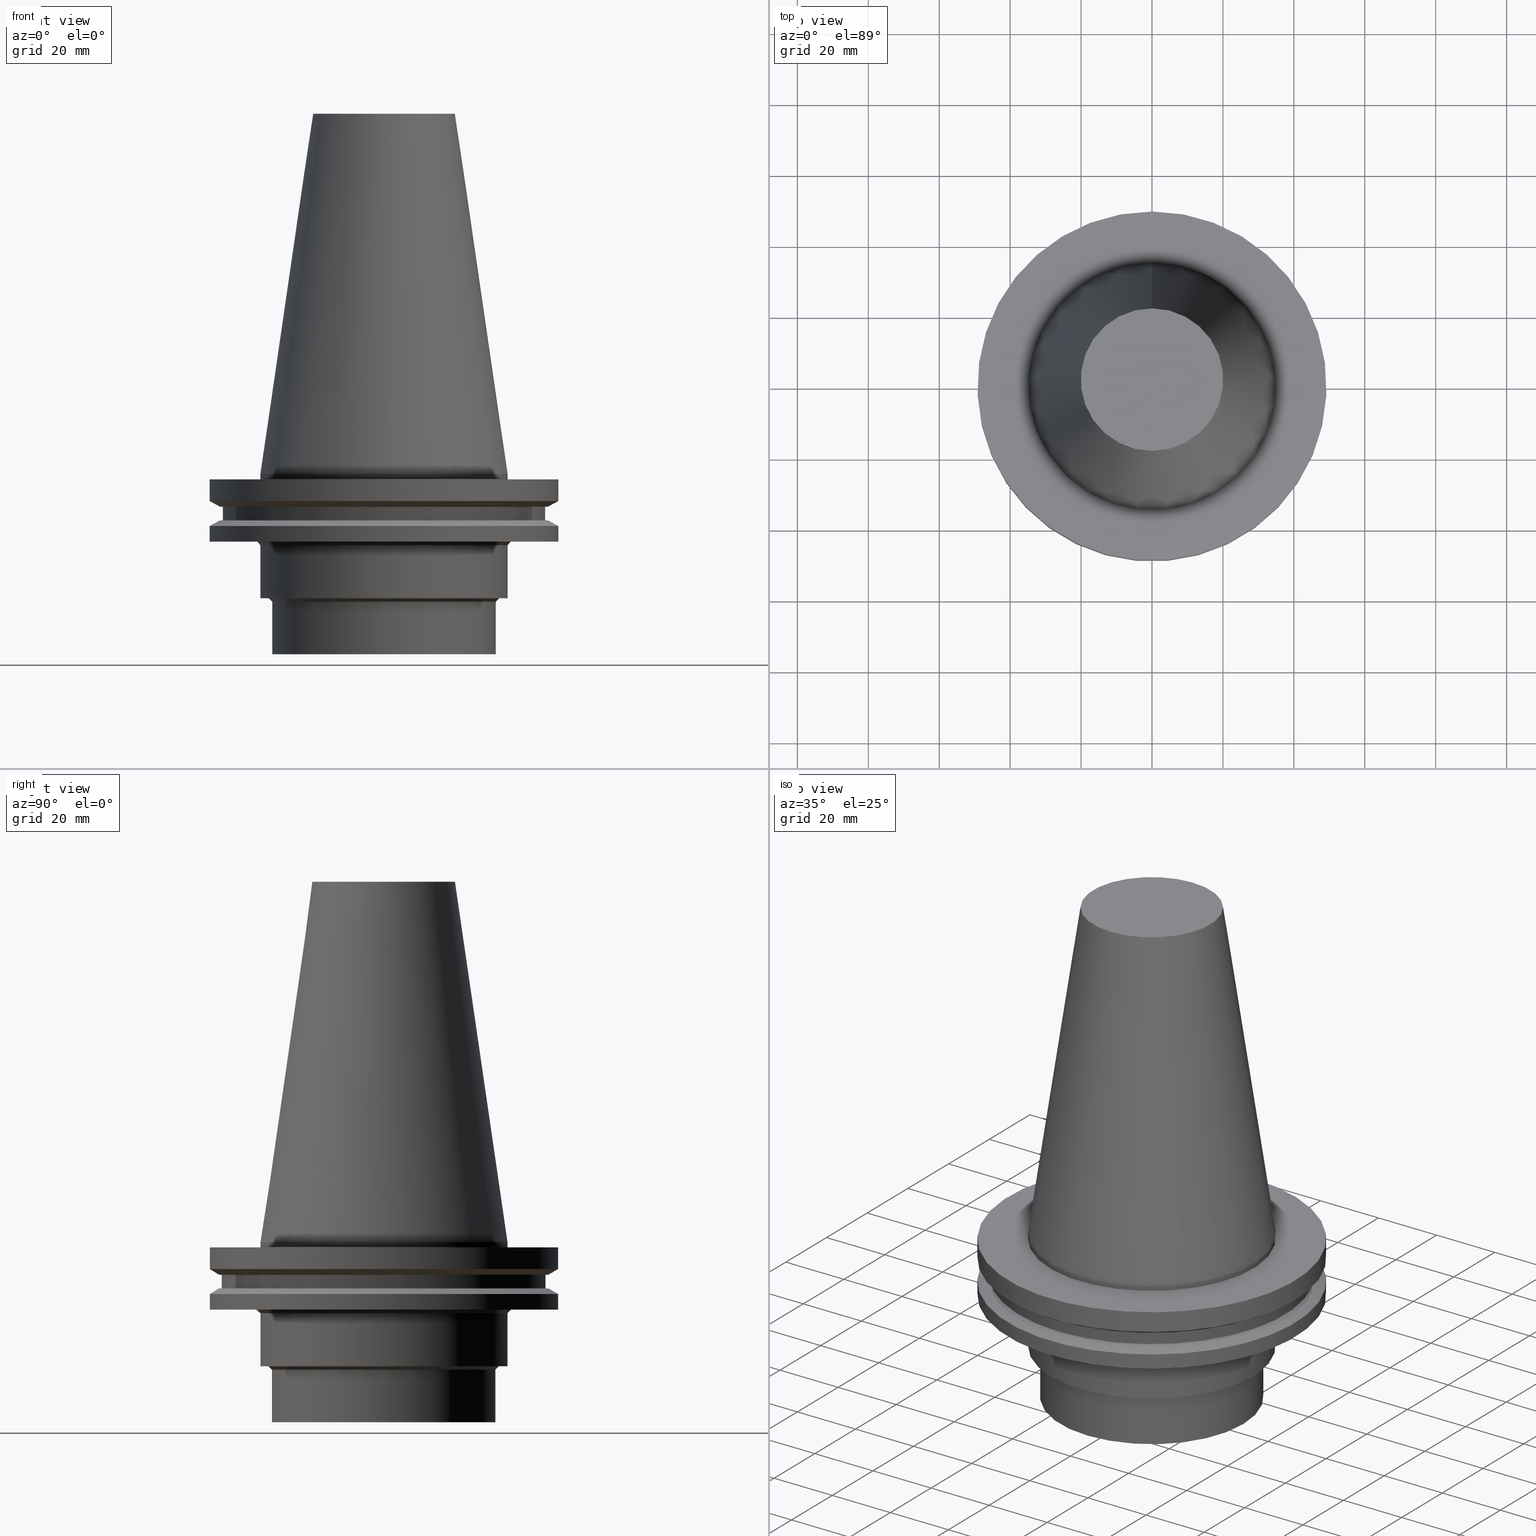
[diagram: canonical four-view strip — front | top / right | iso, engineering-drawing reading convention]
A machine part, canonical four-view strip (front | top / right | iso — engineering-drawing reading convention). The complete STEP part file that produces these views, byte-faithful:
ISO-10303-21;
HEADER;
FILE_DESCRIPTION((''),'1');
FILE_NAME('V:/90_\X2\53D65F9730C730FC30BF\X0\/00_\X2\6DE18DEF30C730FC30BF\X0\/ALL/BCV-BKUS\X2\FF76FF80FF9BFF78FF9E752852A05DE556F3\X0\201801/BCV50Y-CAPTO/BCV50Y-C6-2.stp','2018-02-01T02:02:19',(''),(''),'Spatial Interop R21 SP3','Kubotek KeyCreator 2011 V10.0.2 (22737)',' ');
FILE_SCHEMA(('automotive_design'));
ENDSEC;
DATA;
#1=MECHANICAL_DESIGN_GEOMETRIC_PRESENTATION_REPRESENTATION(' ',(#10,#11,#12,#13,#14,#15,#16,#17,#18,#19,#20,#21,#22,#23,#24,#25,#26,#27,#28,#29,#30,#31,#32,#33,#34,#35,#36,#37,#38,#39,#40,#41,#42,#43,#44,#45),#6);
#2=PRODUCT_DEFINITION_CONTEXT('',#46,'design');
#3=APPLICATION_PROTOCOL_DEFINITION('INTERNATIONAL STANDARD','automotive_design',1994,#46);
#4=PRODUCT_CATEGORY_RELATIONSHIP('NONE','NONE',#47,#48);
#5=SHAPE_DEFINITION_REPRESENTATION(#49,#50);
#6= (GEOMETRIC_REPRESENTATION_CONTEXT(3)GLOBAL_UNCERTAINTY_ASSIGNED_CONTEXT((#53))GLOBAL_UNIT_ASSIGNED_CONTEXT((#55,#56,#57))REPRESENTATION_CONTEXT('NONE','WORKSPACE'));
#10=STYLED_ITEM('',(#59),#60);
#11=STYLED_ITEM('',(#61,#62),#63);
#12=STYLED_ITEM('',(#64),#65);
#13=STYLED_ITEM('',(#66,#67),#68);
#14=STYLED_ITEM('',(#69),#70);
#15=STYLED_ITEM('',(#71),#72);
#16=STYLED_ITEM('',(#73,#74),#75);
#17=STYLED_ITEM('',(#76),#77);
#18=STYLED_ITEM('',(#78),#79);
#19=STYLED_ITEM('',(#80,#81),#82);
#20=STYLED_ITEM('',(#83),#84);
#21=STYLED_ITEM('',(#85,#86),#87);
#22=STYLED_ITEM('',(#88),#89);
#23=STYLED_ITEM('',(#90),#91);
#24=STYLED_ITEM('',(#92),#93);
#25=STYLED_ITEM('',(#94,#95),#96);
#26=STYLED_ITEM('',(#97),#98);
#27=STYLED_ITEM('',(#99,#100),#101);
#28=STYLED_ITEM('',(#102,#103),#104);
#29=STYLED_ITEM('',(#105,#106),#107);
#30=STYLED_ITEM('',(#108),#109);
#31=STYLED_ITEM('',(#110,#111),#112);
#32=STYLED_ITEM('',(#113,#114),#115);
#33=STYLED_ITEM('',(#116),#117);
#34=STYLED_ITEM('',(#118,#119),#120);
#35=STYLED_ITEM('',(#121,#122),#123);
#36=STYLED_ITEM('',(#124),#125);
#37=STYLED_ITEM('',(#126),#127);
#38=STYLED_ITEM('',(#128),#129);
#39=STYLED_ITEM('',(#130,#131),#132);
#40=STYLED_ITEM('',(#133,#134),#135);
#41=STYLED_ITEM('',(#136,#137),#138);
#42=STYLED_ITEM('',(#139,#140),#141);
#43=STYLED_ITEM('',(#142,#143),#144);
#44=STYLED_ITEM('',(#145,#146),#147);
#45=STYLED_ITEM('',(#148),#149);
#46=APPLICATION_CONTEXT(' ');
#47=PRODUCT_CATEGORY('part','NONE');
#48=PRODUCT_RELATED_PRODUCT_CATEGORY('detail',' ',(#150));
#49=PRODUCT_DEFINITION_SHAPE('NONE','NONE',#151);
#50=ADVANCED_BREP_SHAPE_REPRESENTATION('Unnamed[1]',(#141,#152),#6);
#53=UNCERTAINTY_MEASURE_WITH_UNIT(LENGTH_MEASURE(1.0E-006),#55,'','');
#55= (CONVERSION_BASED_UNIT('MILLIMETRE',#155)LENGTH_UNIT()NAMED_UNIT(#158));
#56= (NAMED_UNIT(#160)PLANE_ANGLE_UNIT()SI_UNIT($,.RADIAN.));
#57= (NAMED_UNIT(#160)SOLID_ANGLE_UNIT()SI_UNIT($,.STERADIAN.));
#59=PRESENTATION_STYLE_ASSIGNMENT((#166));
#60=EDGE_CURVE('Unnamed[1]',#167,#167,#168,.T.);
#61=PRESENTATION_STYLE_ASSIGNMENT((#169));
#62=PRESENTATION_STYLE_ASSIGNMENT((#170));
#63=ADVANCED_FACE('Unnamed[1]',(#171,#172),#173,.T.);
#64=PRESENTATION_STYLE_ASSIGNMENT((#174));
#65=EDGE_CURVE('Unnamed[1]',#175,#175,#176,.T.);
#66=PRESENTATION_STYLE_ASSIGNMENT((#177));
#67=PRESENTATION_STYLE_ASSIGNMENT((#178));
#68=ADVANCED_FACE('Unnamed[1]',(#179,#180),#181,.T.);
#69=PRESENTATION_STYLE_ASSIGNMENT((#182));
#70=EDGE_CURVE('Unnamed[1]',#183,#183,#184,.T.);
#71=PRESENTATION_STYLE_ASSIGNMENT((#185));
#72=EDGE_CURVE('Unnamed[1]',#186,#186,#187,.T.);
#73=PRESENTATION_STYLE_ASSIGNMENT((#188));
#74=PRESENTATION_STYLE_ASSIGNMENT((#189));
#75=ADVANCED_FACE('Unnamed[1]',(#190,#191),#192,.T.);
#76=PRESENTATION_STYLE_ASSIGNMENT((#193));
#77=EDGE_CURVE('Unnamed[1]',#194,#194,#195,.T.);
#78=PRESENTATION_STYLE_ASSIGNMENT((#196));
#79=EDGE_CURVE('Unnamed[1]',#197,#197,#198,.T.);
#80=PRESENTATION_STYLE_ASSIGNMENT((#199));
#81=PRESENTATION_STYLE_ASSIGNMENT((#200));
#82=ADVANCED_FACE('Unnamed[1]',(#201,#202),#203,.T.);
#83=PRESENTATION_STYLE_ASSIGNMENT((#204));
#84=EDGE_CURVE('Unnamed[1]',#205,#205,#206,.T.);
#85=PRESENTATION_STYLE_ASSIGNMENT((#207));
#86=PRESENTATION_STYLE_ASSIGNMENT((#208));
#87=ADVANCED_FACE('Unnamed[1]',(#209),#210,.T.);
#88=PRESENTATION_STYLE_ASSIGNMENT((#211));
#89=EDGE_CURVE('Unnamed[1]',#212,#212,#213,.T.);
#90=PRESENTATION_STYLE_ASSIGNMENT((#214));
#91=EDGE_CURVE('Unnamed[1]',#215,#215,#216,.T.);
#92=PRESENTATION_STYLE_ASSIGNMENT((#217));
#93=EDGE_CURVE('Unnamed[1]',#218,#218,#219,.T.);
#94=PRESENTATION_STYLE_ASSIGNMENT((#220));
#95=PRESENTATION_STYLE_ASSIGNMENT((#221));
#96=ADVANCED_FACE('Unnamed[1]',(#222,#223),#224,.T.);
#97=PRESENTATION_STYLE_ASSIGNMENT((#225));
#98=EDGE_CURVE('Unnamed[1]',#226,#226,#227,.T.);
#99=PRESENTATION_STYLE_ASSIGNMENT((#228));
#100=PRESENTATION_STYLE_ASSIGNMENT((#229));
#101=ADVANCED_FACE('Unnamed[1]',(#230,#231),#232,.T.);
#102=PRESENTATION_STYLE_ASSIGNMENT((#233));
#103=PRESENTATION_STYLE_ASSIGNMENT((#234));
#104=ADVANCED_FACE('Unnamed[1]',(#235,#236),#237,.T.);
#105=PRESENTATION_STYLE_ASSIGNMENT((#238));
#106=PRESENTATION_STYLE_ASSIGNMENT((#239));
#107=ADVANCED_FACE('Unnamed[1]',(#240,#241),#242,.T.);
#108=PRESENTATION_STYLE_ASSIGNMENT((#243));
#109=EDGE_CURVE('Unnamed[1]',#244,#244,#245,.T.);
#110=PRESENTATION_STYLE_ASSIGNMENT((#246));
#111=PRESENTATION_STYLE_ASSIGNMENT((#247));
#112=ADVANCED_FACE('Unnamed[1]',(#248),#249,.T.);
#113=PRESENTATION_STYLE_ASSIGNMENT((#250));
#114=PRESENTATION_STYLE_ASSIGNMENT((#251));
#115=ADVANCED_FACE('Unnamed[1]',(#252,#253),#254,.T.);
#116=PRESENTATION_STYLE_ASSIGNMENT((#255));
#117=EDGE_CURVE('Unnamed[1]',#256,#256,#257,.T.);
#118=PRESENTATION_STYLE_ASSIGNMENT((#258));
#119=PRESENTATION_STYLE_ASSIGNMENT((#259));
#120=ADVANCED_FACE('Unnamed[1]',(#260,#261),#262,.T.);
#121=PRESENTATION_STYLE_ASSIGNMENT((#263));
#122=PRESENTATION_STYLE_ASSIGNMENT((#264));
#123=ADVANCED_FACE('Unnamed[1]',(#265,#266),#267,.T.);
#124=PRESENTATION_STYLE_ASSIGNMENT((#268));
#125=EDGE_CURVE('Unnamed[1]',#269,#269,#270,.T.);
#126=PRESENTATION_STYLE_ASSIGNMENT((#271));
#127=EDGE_CURVE('Unnamed[1]',#272,#272,#273,.T.);
#128=PRESENTATION_STYLE_ASSIGNMENT((#274));
#129=EDGE_CURVE('Unnamed[1]',#275,#275,#276,.T.);
#130=PRESENTATION_STYLE_ASSIGNMENT((#277));
#131=PRESENTATION_STYLE_ASSIGNMENT((#278));
#132=ADVANCED_FACE('Unnamed[1]',(#279,#280),#281,.T.);
#133=PRESENTATION_STYLE_ASSIGNMENT((#282));
#134=PRESENTATION_STYLE_ASSIGNMENT((#283));
#135=ADVANCED_FACE('Unnamed[1]',(#284,#285),#286,.T.);
#136=PRESENTATION_STYLE_ASSIGNMENT((#287));
#137=PRESENTATION_STYLE_ASSIGNMENT((#288));
#138=ADVANCED_FACE('Unnamed[1]',(#289,#290),#291,.T.);
#139=PRESENTATION_STYLE_ASSIGNMENT((#292));
#140=PRESENTATION_STYLE_ASSIGNMENT((#293));
#141=MANIFOLD_SOLID_BREP('Unnamed[1]',#294);
#142=PRESENTATION_STYLE_ASSIGNMENT((#295));
#143=PRESENTATION_STYLE_ASSIGNMENT((#296));
#144=ADVANCED_FACE('Unnamed[1]',(#297,#298),#299,.T.);
#145=PRESENTATION_STYLE_ASSIGNMENT((#300));
#146=PRESENTATION_STYLE_ASSIGNMENT((#301));
#147=ADVANCED_FACE('Unnamed[1]',(#302,#303),#304,.T.);
#148=PRESENTATION_STYLE_ASSIGNMENT((#305));
#149=EDGE_CURVE('Unnamed[1]',#306,#306,#307,.T.);
#150=PRODUCT('Unnamed[1]','Unnamed[1]','PART-Unnamed[1]-DESC',(#308));
#151=PRODUCT_DEFINITION('NONE','NONE',#309,#2);
#152=AXIS2_PLACEMENT_3D('',#310,#311,#312);
#155=LENGTH_MEASURE_WITH_UNIT(LENGTH_MEASURE(1.0),#313);
#158=DIMENSIONAL_EXPONENTS(1.0,0.0,0.0,0.0,0.0,0.0,0.0);
#160=DIMENSIONAL_EXPONENTS(0.0,0.0,0.0,0.0,0.0,0.0,0.0);
#166=CURVE_STYLE('',#314,POSITIVE_LENGTH_MEASURE(1000.0),#315);
#167=VERTEX_POINT('',#316);
#168=CIRCLE('',#317,34.9249999999998);
#169=SURFACE_STYLE_USAGE(.BOTH.,#318);
#170=CURVE_STYLE('',#319,POSITIVE_LENGTH_MEASURE(1000.0),#320);
#171=FACE_BOUND('',#321,.T.);
#172=FACE_OUTER_BOUND('',#322,.T.);
#173=PLANE('',#323);
#174=CURVE_STYLE('',#324,POSITIVE_LENGTH_MEASURE(1000.0),#325);
#175=VERTEX_POINT('',#326);
#176=CIRCLE('',#327,32.5);
#177=SURFACE_STYLE_USAGE(.BOTH.,#328);
#178=CURVE_STYLE('',#329,POSITIVE_LENGTH_MEASURE(1000.0),#330);
#179=FACE_BOUND('',#331,.T.);
#180=FACE_BOUND('',#332,.T.);
#181=CYLINDRICAL_SURFACE('',#333,34.925);
#182=CURVE_STYLE('',#334,POSITIVE_LENGTH_MEASURE(1000.0),#335);
#183=VERTEX_POINT('',#336);
#184=CIRCLE('',#337,34.925);
#185=CURVE_STYLE('',#338,POSITIVE_LENGTH_MEASURE(1000.0),#339);
#186=VERTEX_POINT('',#340);
#187=CIRCLE('',#341,34.925);
#188=SURFACE_STYLE_USAGE(.BOTH.,#342);
#189=CURVE_STYLE('',#343,POSITIVE_LENGTH_MEASURE(1000.0),#344);
#190=FACE_BOUND('',#345,.T.);
#191=FACE_BOUND('',#346,.T.);
#192=CYLINDRICAL_SURFACE('',#347,49.2124999999999);
#193=CURVE_STYLE('',#348,POSITIVE_LENGTH_MEASURE(1000.0),#349);
#194=VERTEX_POINT('',#350);
#195=CIRCLE('',#351,49.2125);
#196=CURVE_STYLE('',#352,POSITIVE_LENGTH_MEASURE(1000.0),#353);
#197=VERTEX_POINT('',#354);
#198=CIRCLE('',#355,45.6449999999999);
#199=SURFACE_STYLE_USAGE(.BOTH.,#356);
#200=CURVE_STYLE('',#357,POSITIVE_LENGTH_MEASURE(1000.0),#358);
#201=FACE_BOUND('',#359,.T.);
#202=FACE_BOUND('',#360,.T.);
#203=CYLINDRICAL_SURFACE('',#361,34.9249999999999);
#204=CURVE_STYLE('',#362,POSITIVE_LENGTH_MEASURE(1000.0),#363);
#205=VERTEX_POINT('',#364);
#206=CIRCLE('',#365,49.2124999999999);
#207=SURFACE_STYLE_USAGE(.BOTH.,#366);
#208=CURVE_STYLE('',#367,POSITIVE_LENGTH_MEASURE(1000.0),#368);
#209=FACE_OUTER_BOUND('',#369,.T.);
#210=PLANE('',#370);
#211=CURVE_STYLE('',#371,POSITIVE_LENGTH_MEASURE(1000.0),#372);
#212=VERTEX_POINT('',#373);
#213=CIRCLE('',#374,46.4325584538518);
#214=CURVE_STYLE('',#375,POSITIVE_LENGTH_MEASURE(1000.0),#376);
#215=VERTEX_POINT('',#377);
#216=CIRCLE('',#378,49.2124999999999);
#217=CURVE_STYLE('',#379,POSITIVE_LENGTH_MEASURE(1000.0),#380);
#218=VERTEX_POINT('',#381);
#219=CIRCLE('',#382,35.925);
#220=SURFACE_STYLE_USAGE(.BOTH.,#383);
#221=CURVE_STYLE('',#384,POSITIVE_LENGTH_MEASURE(1000.0),#385);
#222=FACE_BOUND('',#386,.T.);
#223=FACE_BOUND('',#387,.T.);
#224=CYLINDRICAL_SURFACE('',#388,45.6449999999999);
#225=CURVE_STYLE('',#389,POSITIVE_LENGTH_MEASURE(1000.0),#390);
#226=VERTEX_POINT('',#391);
#227=CIRCLE('',#392,46.4325584538519);
#228=SURFACE_STYLE_USAGE(.BOTH.,#393);
#229=CURVE_STYLE('',#394,POSITIVE_LENGTH_MEASURE(1000.0),#395);
#230=FACE_OUTER_BOUND('',#396,.T.);
#231=FACE_BOUND('',#397,.T.);
#232=PLANE('',#398);
#233=SURFACE_STYLE_USAGE(.BOTH.,#399);
#234=CURVE_STYLE('',#400,POSITIVE_LENGTH_MEASURE(1000.0),#401);
#235=FACE_BOUND('',#402,.T.);
#236=FACE_BOUND('',#403,.T.);
#237=CONICAL_SURFACE('',#404,47.822529226926,1.04719755119663);
#238=SURFACE_STYLE_USAGE(.BOTH.,#405);
#239=CURVE_STYLE('',#406,POSITIVE_LENGTH_MEASURE(1000.0),#407);
#240=FACE_BOUND('',#408,.T.);
#241=FACE_OUTER_BOUND('',#409,.T.);
#242=PLANE('',#410);
#243=CURVE_STYLE('',#411,POSITIVE_LENGTH_MEASURE(1000.0),#412);
#244=VERTEX_POINT('',#413);
#245=CIRCLE('',#414,34.9249999999999);
#246=SURFACE_STYLE_USAGE(.BOTH.,#415);
#247=CURVE_STYLE('',#416,POSITIVE_LENGTH_MEASURE(1000.0),#417);
#248=FACE_OUTER_BOUND('',#418,.T.);
#249=PLANE('',#419);
#250=SURFACE_STYLE_USAGE(.BOTH.,#420);
#251=CURVE_STYLE('',#421,POSITIVE_LENGTH_MEASURE(1000.0),#422);
#252=FACE_BOUND('',#423,.T.);
#253=FACE_BOUND('',#424,.T.);
#254=CONICAL_SURFACE('',#425,32.0,0.78539816339746);
#255=CURVE_STYLE('',#426,POSITIVE_LENGTH_MEASURE(1000.0),#427);
#256=VERTEX_POINT('',#428);
#257=CIRCLE('',#429,49.2124999999999);
#258=SURFACE_STYLE_USAGE(.BOTH.,#430);
#259=CURVE_STYLE('',#431,POSITIVE_LENGTH_MEASURE(1000.0),#432);
#260=FACE_BOUND('',#433,.T.);
#261=FACE_BOUND('',#434,.T.);
#262=CONICAL_SURFACE('',#435,27.5166666666666,0.144812498238938);
#263=SURFACE_STYLE_USAGE(.BOTH.,#436);
#264=CURVE_STYLE('',#437,POSITIVE_LENGTH_MEASURE(1000.0),#438);
#265=FACE_BOUND('',#439,.T.);
#266=FACE_BOUND('',#440,.T.);
#267=CONICAL_SURFACE('',#441,35.425,0.785398163397483);
#268=CURVE_STYLE('',#442,POSITIVE_LENGTH_MEASURE(1000.0),#443);
#269=VERTEX_POINT('',#444);
#270=CIRCLE('',#445,45.6449999999999);
#271=CURVE_STYLE('',#446,POSITIVE_LENGTH_MEASURE(1000.0),#447);
#272=VERTEX_POINT('',#448);
#273=CIRCLE('',#449,31.4999999999999);
#274=CURVE_STYLE('',#450,POSITIVE_LENGTH_MEASURE(1000.0),#451);
#275=VERTEX_POINT('',#452);
#276=CIRCLE('',#453,31.4999999999999);
#277=SURFACE_STYLE_USAGE(.BOTH.,#454);
#278=CURVE_STYLE('',#455,POSITIVE_LENGTH_MEASURE(1000.0),#456);
#279=FACE_BOUND('',#457,.T.);
#280=FACE_BOUND('',#458,.T.);
#281=CONICAL_SURFACE('',#459,47.8225292269259,1.04719755119659);
#282=SURFACE_STYLE_USAGE(.BOTH.,#460);
#283=CURVE_STYLE('',#461,POSITIVE_LENGTH_MEASURE(1000.0),#462);
#284=FACE_OUTER_BOUND('',#463,.T.);
#285=FACE_BOUND('',#464,.T.);
#286=PLANE('',#465);
#287=SURFACE_STYLE_USAGE(.BOTH.,#466);
#288=CURVE_STYLE('',#467,POSITIVE_LENGTH_MEASURE(1000.0),#468);
#289=FACE_BOUND('',#469,.T.);
#290=FACE_OUTER_BOUND('',#470,.T.);
#291=PLANE('',#471);
#292=SURFACE_STYLE_USAGE(.BOTH.,#472);
#293=CURVE_STYLE('',#473,POSITIVE_LENGTH_MEASURE(1000.0),#474);
#294=CLOSED_SHELL('',(#87,#120,#68,#135,#75,#104,#63,#96,#101,#132,#147,#138,#123,#82,#107,#115,#144,#112));
#295=SURFACE_STYLE_USAGE(.BOTH.,#475);
#296=CURVE_STYLE('',#476,POSITIVE_LENGTH_MEASURE(1000.0),#477);
#297=FACE_BOUND('',#478,.T.);
#298=FACE_BOUND('',#479,.T.);
#299=CYLINDRICAL_SURFACE('',#480,31.4999999999999);
#300=SURFACE_STYLE_USAGE(.BOTH.,#481);
#301=CURVE_STYLE('',#482,POSITIVE_LENGTH_MEASURE(1000.0),#483);
#302=FACE_BOUND('',#484,.T.);
#303=FACE_BOUND('',#485,.T.);
#304=CYLINDRICAL_SURFACE('',#486,49.2124999999999);
#305=CURVE_STYLE('',#487,POSITIVE_LENGTH_MEASURE(1000.0),#488);
#306=VERTEX_POINT('',#489);
#307=CIRCLE('',#490,20.1083333333333);
#308=PRODUCT_CONTEXT('',#46,'mechanical');
#309=PRODUCT_DEFINITION_FORMATION_WITH_SPECIFIED_SOURCE(' ','NONE',#150,.NOT_KNOWN.);
#310=CARTESIAN_POINT('',(0.0,0.0,0.0));
#311=DIRECTION('',(0.0,0.0,1.0));
#312=DIRECTION('',(1.0,0.0,0.0));
#313= (NAMED_UNIT(#158)LENGTH_UNIT()SI_UNIT(.MILLI.,.METRE.));
#314=DRAUGHTING_PRE_DEFINED_CURVE_FONT('continuous');
#315=COLOUR_RGB('',0.0,1.0,0.0);
#316=CARTESIAN_POINT('',(2.14313189850788E-015,34.9249999999999,-35.0000000000001));
#317=AXIS2_PLACEMENT_3D('',#492,#493,#494);
#318=SURFACE_SIDE_STYLE('',(#495));
#319=DRAUGHTING_PRE_DEFINED_CURVE_FONT('continuous');
#320=COLOUR_RGB('',0.0,1.0,0.0);
#321=EDGE_LOOP('',(#496));
#322=EDGE_LOOP('',(#497));
#323=AXIS2_PLACEMENT_3D('',#498,#499,#500);
#324=DRAUGHTING_PRE_DEFINED_CURVE_FONT('continuous');
#325=COLOUR_RGB('',0.0,1.0,0.0);
#326=CARTESIAN_POINT('',(2.14313189850787E-015,32.5,-35.0000000000001));
#327=AXIS2_PLACEMENT_3D('',#501,#502,#503);
#328=SURFACE_SIDE_STYLE('',(#504));
#329=DRAUGHTING_PRE_DEFINED_CURVE_FONT('continuous');
#330=COLOUR_RGB('',0.0,1.0,0.0);
#331=EDGE_LOOP('',(#505));
#332=EDGE_LOOP('',(#506));
#333=AXIS2_PLACEMENT_3D('',#507,#508,#509);
#334=DRAUGHTING_PRE_DEFINED_CURVE_FONT('continuous');
#335=COLOUR_RGB('',0.0,1.0,0.0);
#336=CARTESIAN_POINT('',(1.22770841614522E-015,34.9250000000001,-20.05));
#337=AXIS2_PLACEMENT_3D('',#510,#511,#512);
#338=DRAUGHTING_PRE_DEFINED_CURVE_FONT('continuous');
#339=COLOUR_RGB('',0.0,1.0,0.0);
#340=CARTESIAN_POINT('',(4.82986938111671E-029,34.925,-7.9153078510529E-013));
#341=AXIS2_PLACEMENT_3D('',#513,#514,#515);
#342=SURFACE_SIDE_STYLE('',(#516));
#343=DRAUGHTING_PRE_DEFINED_CURVE_FONT('continuous');
#344=COLOUR_RGB('',0.0,1.0,0.0);
#345=EDGE_LOOP('',(#517));
#346=EDGE_LOOP('',(#518));
#347=AXIS2_PLACEMENT_3D('',#519,#520,#521);
#348=DRAUGHTING_PRE_DEFINED_CURVE_FONT('continuous');
#349=COLOUR_RGB('',0.0,1.0,0.0);
#350=CARTESIAN_POINT('',(4.65059621976208E-016,49.2125,-7.59500000000002));
#351=AXIS2_PLACEMENT_3D('',#522,#523,#524);
#352=DRAUGHTING_PRE_DEFINED_CURVE_FONT('continuous');
#353=COLOUR_RGB('',0.0,1.0,0.0);
#354=CARTESIAN_POINT('',(5.63337527607778E-016,45.6449999999999,-9.19999999999993));
#355=AXIS2_PLACEMENT_3D('',#525,#526,#527);
#356=SURFACE_SIDE_STYLE('',(#528));
#357=DRAUGHTING_PRE_DEFINED_CURVE_FONT('continuous');
#358=COLOUR_RGB('',0.0,1.0,0.0);
#359=EDGE_LOOP('',(#529));
#360=EDGE_LOOP('',(#530));
#361=AXIS2_PLACEMENT_3D('',#531,#532,#533);
#362=DRAUGHTING_PRE_DEFINED_CURVE_FONT('continuous');
#363=COLOUR_RGB('',0.0,1.0,0.0);
#364=CARTESIAN_POINT('',(8.96747618675648E-016,49.2124999999999,-14.645));
#365=AXIS2_PLACEMENT_3D('',#534,#535,#536);
#366=SURFACE_SIDE_STYLE('',(#537));
#367=DRAUGHTING_PRE_DEFINED_CURVE_FONT('continuous');
#368=COLOUR_RGB('',0.0,1.0,0.0);
#369=EDGE_LOOP('',(#538));
#370=AXIS2_PLACEMENT_3D('',#539,#540,#541);
#371=DRAUGHTING_PRE_DEFINED_CURVE_FONT('continuous');
#372=COLOUR_RGB('',0.0,1.0,0.0);
#373=CARTESIAN_POINT('',(7.98469713044071E-016,46.4325584538519,-13.04));
#374=AXIS2_PLACEMENT_3D('',#542,#543,#544);
#375=DRAUGHTING_PRE_DEFINED_CURVE_FONT('continuous');
#376=COLOUR_RGB('',0.0,1.0,0.0);
#377=CARTESIAN_POINT('',(1.16647607618786E-015,49.2124999999999,-19.0500000000001));
#378=AXIS2_PLACEMENT_3D('',#545,#546,#547);
#379=DRAUGHTING_PRE_DEFINED_CURVE_FONT('continuous');
#380=COLOUR_RGB('',0.0,1.0,0.0);
#381=CARTESIAN_POINT('',(1.16647607618786E-015,35.9250000000001,-19.0500000000001));
#382=AXIS2_PLACEMENT_3D('',#548,#549,#550);
#383=SURFACE_SIDE_STYLE('',(#551));
#384=DRAUGHTING_PRE_DEFINED_CURVE_FONT('continuous');
#385=COLOUR_RGB('',0.0,1.0,0.0);
#386=EDGE_LOOP('',(#552));
#387=EDGE_LOOP('',(#553));
#388=AXIS2_PLACEMENT_3D('',#554,#555,#556);
#389=DRAUGHTING_PRE_DEFINED_CURVE_FONT('continuous');
#390=COLOUR_RGB('',0.0,1.0,0.0);
#391=CARTESIAN_POINT('',(5.63337527607778E-016,46.432558453852,-9.19999999999993));
#392=AXIS2_PLACEMENT_3D('',#557,#558,#559);
#393=SURFACE_SIDE_STYLE('',(#560));
#394=DRAUGHTING_PRE_DEFINED_CURVE_FONT('continuous');
#395=COLOUR_RGB('',0.0,1.0,0.0);
#396=EDGE_LOOP('',(#561));
#397=EDGE_LOOP('',(#562));
#398=AXIS2_PLACEMENT_3D('',#563,#564,#565);
#399=SURFACE_SIDE_STYLE('',(#566));
#400=DRAUGHTING_PRE_DEFINED_CURVE_FONT('continuous');
#401=COLOUR_RGB('',0.0,1.0,0.0);
#402=EDGE_LOOP('',(#567));
#403=EDGE_LOOP('',(#568));
#404=AXIS2_PLACEMENT_3D('',#569,#570,#571);
#405=SURFACE_SIDE_STYLE('',(#572));
#406=DRAUGHTING_PRE_DEFINED_CURVE_FONT('continuous');
#407=COLOUR_RGB('',0.0,1.0,0.0);
#408=EDGE_LOOP('',(#573));
#409=EDGE_LOOP('',(#574));
#410=AXIS2_PLACEMENT_3D('',#575,#576,#577);
#411=DRAUGHTING_PRE_DEFINED_CURVE_FONT('continuous');
#412=COLOUR_RGB('',0.0,1.0,0.0);
#413=CARTESIAN_POINT('',(9.18485099360509E-017,34.925,-1.49999999999999));
#414=AXIS2_PLACEMENT_3D('',#578,#579,#580);
#415=SURFACE_SIDE_STYLE('',(#581));
#416=DRAUGHTING_PRE_DEFINED_CURVE_FONT('continuous');
#417=COLOUR_RGB('',0.0,1.0,0.0);
#418=EDGE_LOOP('',(#582));
#419=AXIS2_PLACEMENT_3D('',#583,#584,#585);
#420=SURFACE_SIDE_STYLE('',(#586));
#421=DRAUGHTING_PRE_DEFINED_CURVE_FONT('continuous');
#422=COLOUR_RGB('',0.0,1.0,0.0);
#423=EDGE_LOOP('',(#587));
#424=EDGE_LOOP('',(#588));
#425=AXIS2_PLACEMENT_3D('',#589,#590,#591);
#426=DRAUGHTING_PRE_DEFINED_CURVE_FONT('continuous');
#427=COLOUR_RGB('',0.0,1.0,0.0);
#428=CARTESIAN_POINT('',(9.18485099360508E-017,49.2124999999999,-1.49999999999999));
#429=AXIS2_PLACEMENT_3D('',#592,#593,#594);
#430=SURFACE_SIDE_STYLE('',(#595));
#431=DRAUGHTING_PRE_DEFINED_CURVE_FONT('continuous');
#432=COLOUR_RGB('',0.0,1.0,0.0);
#433=EDGE_LOOP('',(#596));
#434=EDGE_LOOP('',(#597));
#435=AXIS2_PLACEMENT_3D('',#598,#599,#600);
#436=SURFACE_SIDE_STYLE('',(#601));
#437=DRAUGHTING_PRE_DEFINED_CURVE_FONT('continuous');
#438=COLOUR_RGB('',0.0,1.0,0.0);
#439=EDGE_LOOP('',(#602));
#440=EDGE_LOOP('',(#603));
#441=AXIS2_PLACEMENT_3D('',#604,#605,#606);
#442=DRAUGHTING_PRE_DEFINED_CURVE_FONT('continuous');
#443=COLOUR_RGB('',0.0,1.0,0.0);
#444=CARTESIAN_POINT('',(7.98469713044071E-016,45.6449999999999,-13.04));
#445=AXIS2_PLACEMENT_3D('',#607,#608,#609);
#446=DRAUGHTING_PRE_DEFINED_CURVE_FONT('continuous');
#447=COLOUR_RGB('',0.0,1.0,0.0);
#448=CARTESIAN_POINT('',(2.20436423846524E-015,31.5,-36.0000000000001));
#449=AXIS2_PLACEMENT_3D('',#610,#611,#612);
#450=DRAUGHTING_PRE_DEFINED_CURVE_FONT('continuous');
#451=COLOUR_RGB('',0.0,1.0,0.0);
#452=CARTESIAN_POINT('',(3.11060286983428E-015,31.5,-50.8));
#453=AXIS2_PLACEMENT_3D('',#613,#614,#615);
#454=SURFACE_SIDE_STYLE('',(#616));
#455=DRAUGHTING_PRE_DEFINED_CURVE_FONT('continuous');
#456=COLOUR_RGB('',0.0,1.0,0.0);
#457=EDGE_LOOP('',(#617));
#458=EDGE_LOOP('',(#618));
#459=AXIS2_PLACEMENT_3D('',#619,#620,#621);
#460=SURFACE_SIDE_STYLE('',(#622));
#461=DRAUGHTING_PRE_DEFINED_CURVE_FONT('continuous');
#462=COLOUR_RGB('',0.0,1.0,0.0);
#463=EDGE_LOOP('',(#623));
#464=EDGE_LOOP('',(#624));
#465=AXIS2_PLACEMENT_3D('',#625,#626,#627);
#466=SURFACE_SIDE_STYLE('',(#628));
#467=DRAUGHTING_PRE_DEFINED_CURVE_FONT('continuous');
#468=COLOUR_RGB('',0.0,1.0,0.0);
#469=EDGE_LOOP('',(#629));
#470=EDGE_LOOP('',(#630));
#471=AXIS2_PLACEMENT_3D('',#631,#632,#633);
#472=SURFACE_SIDE_STYLE('',(#634));
#473=DRAUGHTING_PRE_DEFINED_CURVE_FONT('continuous');
#474=COLOUR_RGB('',0.0,1.0,0.0);
#475=SURFACE_SIDE_STYLE('',(#635));
#476=DRAUGHTING_PRE_DEFINED_CURVE_FONT('continuous');
#477=COLOUR_RGB('',0.0,1.0,0.0);
#478=EDGE_LOOP('',(#636));
#479=EDGE_LOOP('',(#637));
#480=AXIS2_PLACEMENT_3D('',#638,#639,#640);
#481=SURFACE_SIDE_STYLE('',(#641));
#482=DRAUGHTING_PRE_DEFINED_CURVE_FONT('continuous');
#483=COLOUR_RGB('',0.0,1.0,0.0);
#484=EDGE_LOOP('',(#642));
#485=EDGE_LOOP('',(#643));
#486=AXIS2_PLACEMENT_3D('',#644,#645,#646);
#487=DRAUGHTING_PRE_DEFINED_CURVE_FONT('continuous');
#488=COLOUR_RGB('',0.0,1.0,0.0);
#489=CARTESIAN_POINT('',(-6.22120573966855E-015,20.1083333333332,101.6));
#490=AXIS2_PLACEMENT_3D('',#647,#648,#649);
#492=CARTESIAN_POINT('',(2.14313189850788E-015,6.10458033794307E-014,-35.0000000000002));
#493=DIRECTION('',(6.12323399573676E-017,9.31673031619395E-016,-1.0));
#494=DIRECTION('',(-6.18756725319996E-032,1.0,9.31673031619395E-016));
#495=SURFACE_STYLE_FILL_AREA(#650);
#496=ORIENTED_EDGE('',*,*,#79,.F.);
#497=ORIENTED_EDGE('',*,*,#98,.T.);
#498=CARTESIAN_POINT('',(5.63337527607778E-016,46.0387792269259,-9.19999999999993));
#499=DIRECTION('',(6.12323399573677E-017,1.22464679914735E-016,-1.0));
#500=DIRECTION('',(-1.23259516440783E-032,1.0,1.22464679914735E-016));
#501=CARTESIAN_POINT('',(2.14313189850787E-015,6.10458033794306E-014,-35.0000000000001));
#502=DIRECTION('',(6.12323399573677E-017,9.31673031619411E-016,-1.0));
#503=DIRECTION('',(-6.18756725320012E-032,1.0,9.31673031619411E-016));
#504=SURFACE_STYLE_FILL_AREA(#651);
#505=ORIENTED_EDGE('',*,*,#109,.F.);
#506=ORIENTED_EDGE('',*,*,#72,.T.);
#507=CARTESIAN_POINT('',(4.59242549680518E-017,2.91360020464664E-014,-0.750000000000426));
#508=DIRECTION('',(6.12323399573677E-017,9.31673031619391E-016,-1.0));
#509=DIRECTION('',(-6.18756725319994E-032,1.0,9.31673031619391E-016));
#510=CARTESIAN_POINT('',(1.22770841614522E-015,4.71172915567205E-014,-20.05));
#511=DIRECTION('',(6.12323399573677E-017,9.31673031619413E-016,-1.0));
#512=DIRECTION('',(-6.18756725319993E-032,1.0,9.31673031619413E-016));
#513=CARTESIAN_POINT('',(5.04695054463486E-029,2.84372472727522E-014,-8.24229573481716E-013));
#514=DIRECTION('',(6.12323399573677E-017,9.31673031619414E-016,-1.0));
#515=DIRECTION('',(-6.18756725319993E-032,1.0,9.31673031619414E-016));
#516=SURFACE_STYLE_FILL_AREA(#652);
#517=ORIENTED_EDGE('',*,*,#77,.F.);
#518=ORIENTED_EDGE('',*,*,#117,.T.);
#519=CARTESIAN_POINT('',(2.78454065956133E-016,3.26740303840407E-014,-4.54750000000006));
#520=DIRECTION('',(6.12323399573677E-017,9.31673031619397E-016,-1.0));
#521=DIRECTION('',(-6.18756725319995E-032,1.0,9.31673031619397E-016));
#522=CARTESIAN_POINT('',(4.65059621976212E-016,3.55133039479009E-014,-7.59500000000007));
#523=DIRECTION('',(6.12323399573677E-017,9.31673031619395E-016,-1.0));
#524=DIRECTION('',(-6.18756725319995E-032,1.0,9.31673031619395E-016));
#525=CARTESIAN_POINT('',(5.6333752760778E-016,3.70086391636499E-014,-9.19999999999997));
#526=DIRECTION('',(6.12323399573677E-017,9.31673031619402E-016,-1.0));
#527=DIRECTION('',(-6.1875672531998E-032,1.0,9.31673031619402E-016));
#528=SURFACE_STYLE_FILL_AREA(#653);
#529=ORIENTED_EDGE('',*,*,#60,.F.);
#530=ORIENTED_EDGE('',*,*,#70,.T.);
#531=CARTESIAN_POINT('',(1.68542015732655E-015,5.40815474680756E-014,-27.5250000000001));
#532=DIRECTION('',(6.12323399573677E-017,9.31673031619392E-016,-1.0));
#533=DIRECTION('',(-6.18756725319994E-032,1.0,9.31673031619392E-016));
#534=CARTESIAN_POINT('',(8.96747618675651E-016,4.20815988208176E-014,-14.645));
#535=DIRECTION('',(6.12323399573677E-017,9.31673031619398E-016,-1.0));
#536=DIRECTION('',(-6.18756725319996E-032,1.0,9.31673031619398E-016));
#537=SURFACE_STYLE_FILL_AREA(#654);
#538=ORIENTED_EDGE('',*,*,#149,.F.);
#539=CARTESIAN_POINT('',(-6.22120573966855E-015,10.0541666666666,101.6));
#540=DIRECTION('',(-6.12323399573677E-017,-1.22464679914735E-016,1.0));
#541=DIRECTION('',(1.23259516440783E-032,-1.0,-1.22464679914735E-016));
#542=CARTESIAN_POINT('',(7.98469713044074E-016,4.05862636050685E-014,-13.04));
#543=DIRECTION('',(6.12323399573677E-017,9.31673031619419E-016,-1.0));
#544=DIRECTION('',(-6.18756725319984E-032,1.0,9.31673031619419E-016));
#545=CARTESIAN_POINT('',(1.16647607618786E-015,4.61856185251012E-014,-19.0500000000001));
#546=DIRECTION('',(6.12323399573677E-017,9.31673031619398E-016,-1.0));
#547=DIRECTION('',(-6.18756725319996E-032,1.0,9.31673031619398E-016));
#548=CARTESIAN_POINT('',(1.16647607618786E-015,4.61856185251012E-014,-19.0500000000001));
#549=DIRECTION('',(6.12323399573677E-017,9.31673031619411E-016,-1.0));
#550=DIRECTION('',(-6.18756725320007E-032,1.0,9.31673031619411E-016));
#551=SURFACE_STYLE_FILL_AREA(#655);
#552=ORIENTED_EDGE('',*,*,#125,.F.);
#553=ORIENTED_EDGE('',*,*,#79,.T.);
#554=CARTESIAN_POINT('',(6.80903620325927E-016,3.87974513843592E-014,-11.12));
#555=DIRECTION('',(6.12323399573677E-017,9.31673031619402E-016,-1.0));
#556=DIRECTION('',(-6.1875672531998E-032,1.0,9.31673031619402E-016));
#557=CARTESIAN_POINT('',(5.6333752760778E-016,3.70086391636499E-014,-9.19999999999997));
#558=DIRECTION('',(6.12323399573677E-017,9.31673031619417E-016,-1.0));
#559=DIRECTION('',(-6.18756725320002E-032,1.0,9.31673031619417E-016));
#560=SURFACE_STYLE_FILL_AREA(#656);
#561=ORIENTED_EDGE('',*,*,#89,.F.);
#562=ORIENTED_EDGE('',*,*,#125,.T.);
#563=CARTESIAN_POINT('',(7.98469713044071E-016,46.0387792269259,-13.04));
#564=DIRECTION('',(-6.12323399573677E-017,-1.22464679914735E-016,1.0));
#565=DIRECTION('',(1.23259516440783E-032,-1.0,-1.22464679914735E-016));
#566=SURFACE_STYLE_FILL_AREA(#657);
#567=ORIENTED_EDGE('',*,*,#98,.F.);
#568=ORIENTED_EDGE('',*,*,#77,.T.);
#569=CARTESIAN_POINT('',(5.14198574791996E-016,3.62609715557754E-014,-8.39750000000002));
#570=DIRECTION('',(-6.12323399573677E-017,-9.31673031619406E-016,1.0));
#571=DIRECTION('',(-6.18756725319998E-032,1.0,9.31673031619406E-016));
#572=SURFACE_STYLE_FILL_AREA(#658);
#573=ORIENTED_EDGE('',*,*,#65,.F.);
#574=ORIENTED_EDGE('',*,*,#60,.T.);
#575=CARTESIAN_POINT('',(2.14313189850787E-015,33.7125,-35.0000000000001));
#576=DIRECTION('',(6.12323399573677E-017,-3.21083398287926E-014,-1.0));
#577=DIRECTION('',(1.96124162713255E-030,1.0,-3.21083398287926E-014));
#578=CARTESIAN_POINT('',(9.18485099360532E-017,2.98347568201806E-014,-1.50000000000003));
#579=DIRECTION('',(6.12323399573677E-017,9.31673031619392E-016,-1.0));
#580=DIRECTION('',(-6.18756725319994E-032,1.0,9.31673031619392E-016));
#581=SURFACE_STYLE_FILL_AREA(#659);
#582=ORIENTED_EDGE('',*,*,#129,.T.);
#583=CARTESIAN_POINT('',(3.11060286983428E-015,15.75,-50.8));
#584=DIRECTION('',(6.12323399573677E-017,-5.54242687475838E-016,-1.0));
#585=DIRECTION('',(2.91104239276366E-032,1.0,-5.54242687475838E-016));
#586=SURFACE_STYLE_FILL_AREA(#660);
#587=ORIENTED_EDGE('',*,*,#127,.F.);
#588=ORIENTED_EDGE('',*,*,#65,.T.);
#589=CARTESIAN_POINT('',(2.17374806848656E-015,6.15116398952403E-014,-35.5000000000001));
#590=DIRECTION('',(-6.12323399573676E-017,-9.31673031619412E-016,1.0));
#591=DIRECTION('',(-6.18756725319997E-032,1.0,9.31673031619412E-016));
#592=CARTESIAN_POINT('',(9.18485099360541E-017,2.98347568201806E-014,-1.50000000000004));
#593=DIRECTION('',(6.12323399573677E-017,9.31673031619397E-016,-1.0));
#594=DIRECTION('',(-6.18756725319978E-032,1.0,9.31673031619397E-016));
#595=SURFACE_STYLE_FILL_AREA(#661);
#596=ORIENTED_EDGE('',*,*,#72,.F.);
#597=ORIENTED_EDGE('',*,*,#149,.T.);
#598=CARTESIAN_POINT('',(-3.11060286983425E-015,-1.88917427335138E-014,50.7999999999996));
#599=DIRECTION('',(6.12323399573677E-017,9.31673031619389E-016,-1.0));
#600=DIRECTION('',(-6.18756725319968E-032,1.0,9.31673031619389E-016));
#601=SURFACE_STYLE_FILL_AREA(#662);
#602=ORIENTED_EDGE('',*,*,#70,.F.);
#603=ORIENTED_EDGE('',*,*,#93,.T.);
#604=CARTESIAN_POINT('',(1.19709224616654E-015,4.66514550409108E-014,-19.5500000000001));
#605=DIRECTION('',(-6.12323399573677E-017,-9.31673031619412E-016,1.0));
#606=DIRECTION('',(-6.18756725319994E-032,1.0,9.31673031619412E-016));
#607=CARTESIAN_POINT('',(7.98469713044074E-016,4.05862636050685E-014,-13.04));
#608=DIRECTION('',(6.12323399573677E-017,9.31673031619402E-016,-1.0));
#609=DIRECTION('',(-6.1875672531998E-032,1.0,9.31673031619402E-016));
#610=CARTESIAN_POINT('',(2.20436423846524E-015,6.197747641105E-014,-36.0000000000001));
#611=DIRECTION('',(6.12323399573677E-017,9.31673031619413E-016,-1.0));
#612=DIRECTION('',(-6.1875672532001E-032,1.0,9.31673031619413E-016));
#613=CARTESIAN_POINT('',(3.11060286983428E-015,7.57662372790171E-014,-50.8));
#614=DIRECTION('',(6.12323399573677E-017,9.31673031619414E-016,-1.0));
#615=DIRECTION('',(-6.18756725319997E-032,1.0,9.31673031619414E-016));
#616=SURFACE_STYLE_FILL_AREA(#663);
#617=ORIENTED_EDGE('',*,*,#84,.F.);
#618=ORIENTED_EDGE('',*,*,#89,.T.);
#619=CARTESIAN_POINT('',(8.47608665859862E-016,4.1333931212943E-014,-13.8425));
#620=DIRECTION('',(6.12323399573677E-017,9.31673031619408E-016,-1.0));
#621=DIRECTION('',(-6.1875672532E-032,1.0,9.31673031619408E-016));
#622=SURFACE_STYLE_FILL_AREA(#664);
#623=ORIENTED_EDGE('',*,*,#117,.F.);
#624=ORIENTED_EDGE('',*,*,#109,.T.);
#625=CARTESIAN_POINT('',(9.18485099360509E-017,42.0687499999999,-1.49999999999999));
#626=DIRECTION('',(-6.12323399573677E-017,-1.22464679914735E-016,1.0));
#627=DIRECTION('',(1.23259516440783E-032,-1.0,-1.22464679914735E-016));
#628=SURFACE_STYLE_FILL_AREA(#665);
#629=ORIENTED_EDGE('',*,*,#93,.F.);
#630=ORIENTED_EDGE('',*,*,#91,.T.);
#631=CARTESIAN_POINT('',(1.16647607618786E-015,42.56875,-19.0500000000001));
#632=DIRECTION('',(6.12323399573677E-017,6.57209918492427E-016,-1.0));
#633=DIRECTION('',(-4.50696538832512E-032,1.0,6.57209918492427E-016));
#634=SURFACE_STYLE_FILL_AREA(#666);
#635=SURFACE_STYLE_FILL_AREA(#667);
#636=ORIENTED_EDGE('',*,*,#129,.F.);
#637=ORIENTED_EDGE('',*,*,#127,.T.);
#638=CARTESIAN_POINT('',(2.65748355414976E-015,6.88718568450336E-014,-43.4000000000001));
#639=DIRECTION('',(6.12323399573677E-017,9.31673031619413E-016,-1.0));
#640=DIRECTION('',(-6.18756725319996E-032,1.0,9.31673031619413E-016));
#641=SURFACE_STYLE_FILL_AREA(#668);
#642=ORIENTED_EDGE('',*,*,#91,.F.);
#643=ORIENTED_EDGE('',*,*,#84,.T.);
#644=CARTESIAN_POINT('',(1.03161184743176E-015,4.41336086729594E-014,-16.8475000000001));
#645=DIRECTION('',(6.12323399573677E-017,9.31673031619398E-016,-1.0));
#646=DIRECTION('',(-6.18756725319996E-032,1.0,9.31673031619398E-016));
#647=CARTESIAN_POINT('',(-6.22120573966855E-015,-6.62207327397798E-014,101.6));
#648=DIRECTION('',(6.12323399573677E-017,9.31673031619385E-016,-1.0));
#649=DIRECTION('',(-6.18756725319991E-032,1.0,9.31673031619385E-016));
#650=FILL_AREA_STYLE('',(#669));
#651=FILL_AREA_STYLE('',(#670));
#652=FILL_AREA_STYLE('',(#671));
#653=FILL_AREA_STYLE('',(#672));
#654=FILL_AREA_STYLE('',(#673));
#655=FILL_AREA_STYLE('',(#674));
#656=FILL_AREA_STYLE('',(#675));
#657=FILL_AREA_STYLE('',(#676));
#658=FILL_AREA_STYLE('',(#677));
#659=FILL_AREA_STYLE('',(#678));
#660=FILL_AREA_STYLE('',(#679));
#661=FILL_AREA_STYLE('',(#680));
#662=FILL_AREA_STYLE('',(#681));
#663=FILL_AREA_STYLE('',(#682));
#664=FILL_AREA_STYLE('',(#683));
#665=FILL_AREA_STYLE('',(#684));
#666=FILL_AREA_STYLE('',(#685));
#667=FILL_AREA_STYLE('',(#686));
#668=FILL_AREA_STYLE('',(#687));
#669=FILL_AREA_STYLE_COLOUR('',#688);
#670=FILL_AREA_STYLE_COLOUR('',#689);
#671=FILL_AREA_STYLE_COLOUR('',#690);
#672=FILL_AREA_STYLE_COLOUR('',#691);
#673=FILL_AREA_STYLE_COLOUR('',#692);
#674=FILL_AREA_STYLE_COLOUR('',#693);
#675=FILL_AREA_STYLE_COLOUR('',#694);
#676=FILL_AREA_STYLE_COLOUR('',#695);
#677=FILL_AREA_STYLE_COLOUR('',#696);
#678=FILL_AREA_STYLE_COLOUR('',#697);
#679=FILL_AREA_STYLE_COLOUR('',#698);
#680=FILL_AREA_STYLE_COLOUR('',#699);
#681=FILL_AREA_STYLE_COLOUR('',#700);
#682=FILL_AREA_STYLE_COLOUR('',#701);
#683=FILL_AREA_STYLE_COLOUR('',#702);
#684=FILL_AREA_STYLE_COLOUR('',#703);
#685=FILL_AREA_STYLE_COLOUR('',#704);
#686=FILL_AREA_STYLE_COLOUR('',#705);
#687=FILL_AREA_STYLE_COLOUR('',#706);
#688=COLOUR_RGB('',0.0,1.0,0.0);
#689=COLOUR_RGB('',0.0,1.0,0.0);
#690=COLOUR_RGB('',0.0,1.0,0.0);
#691=COLOUR_RGB('',0.0,1.0,0.0);
#692=COLOUR_RGB('',0.0,1.0,0.0);
#693=COLOUR_RGB('',0.0,1.0,0.0);
#694=COLOUR_RGB('',0.0,1.0,0.0);
#695=COLOUR_RGB('',0.0,1.0,0.0);
#696=COLOUR_RGB('',0.0,1.0,0.0);
#697=COLOUR_RGB('',0.0,1.0,0.0);
#698=COLOUR_RGB('',0.0,1.0,0.0);
#699=COLOUR_RGB('',0.0,1.0,0.0);
#700=COLOUR_RGB('',0.0,1.0,0.0);
#701=COLOUR_RGB('',0.0,1.0,0.0);
#702=COLOUR_RGB('',0.0,1.0,0.0);
#703=COLOUR_RGB('',0.0,1.0,0.0);
#704=COLOUR_RGB('',0.0,1.0,0.0);
#705=COLOUR_RGB('',0.0,1.0,0.0);
#706=COLOUR_RGB('',0.0,1.0,0.0);
ENDSEC;
END-ISO-10303-21;
